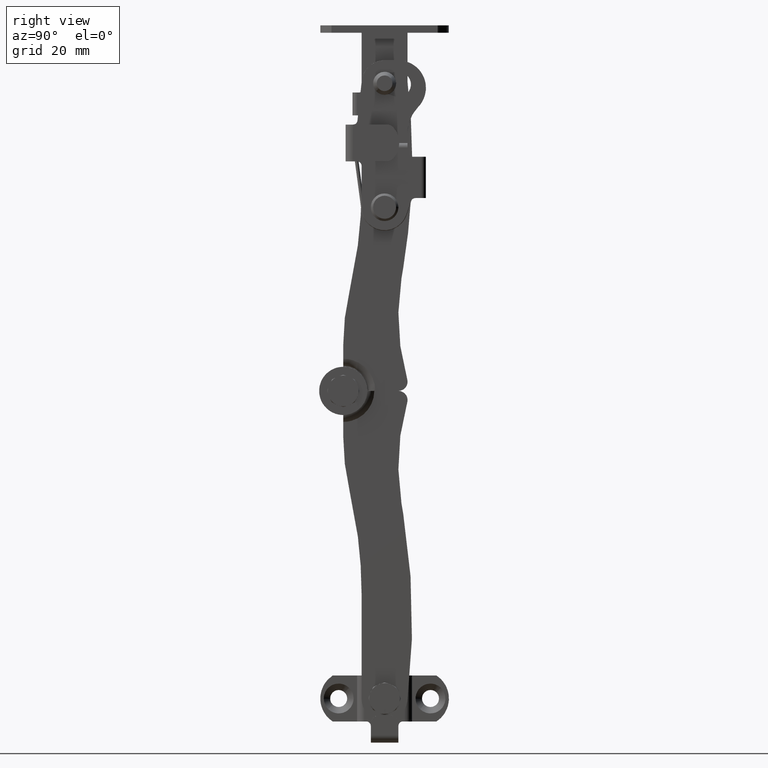
[diagram: clean part render]
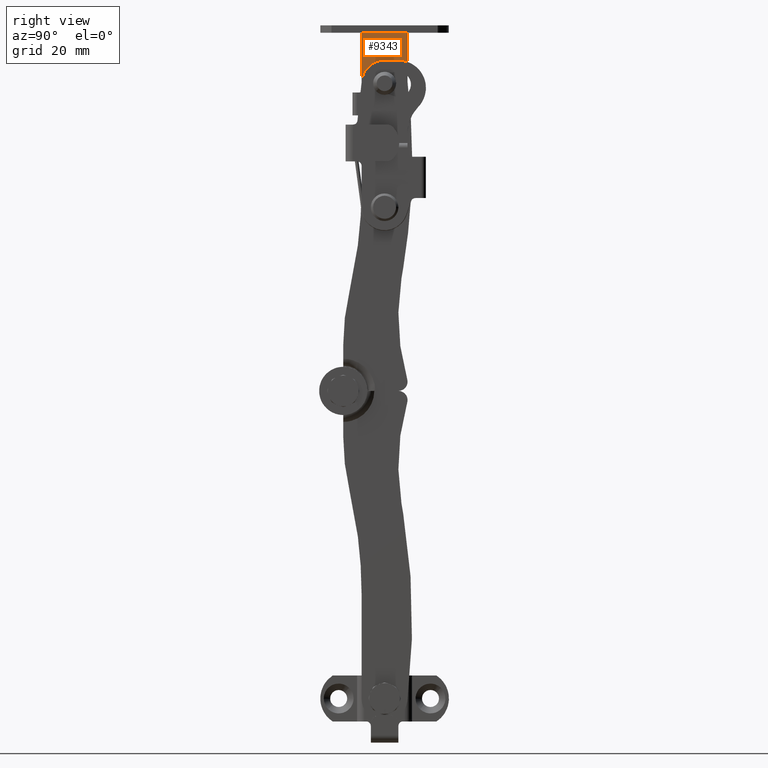
[diagram: same view with one face highlighted and labeled with its STEP entity id]
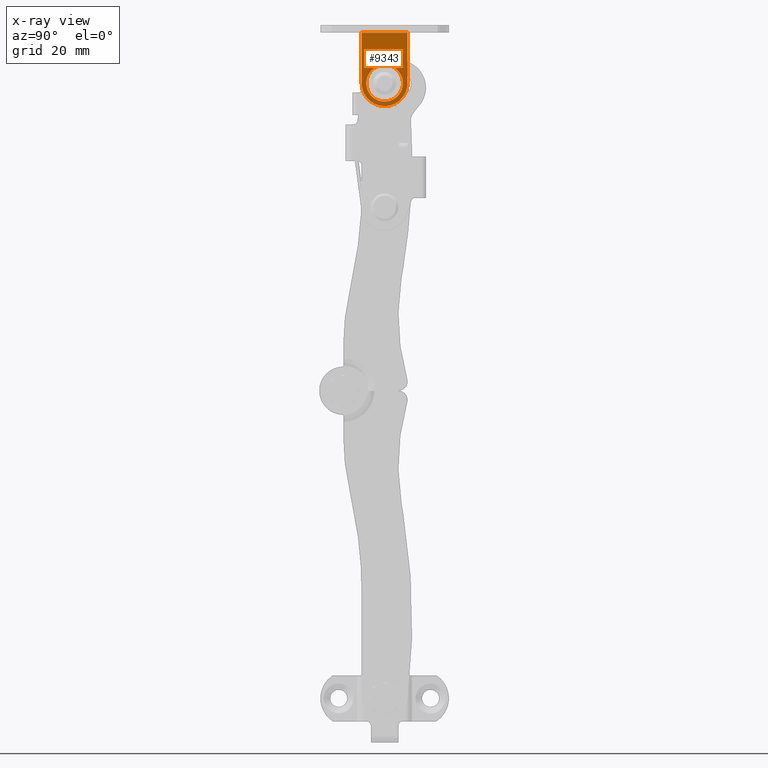
[diagram: x-ray of the same camera — body ghosted, the highlighted face saturated]
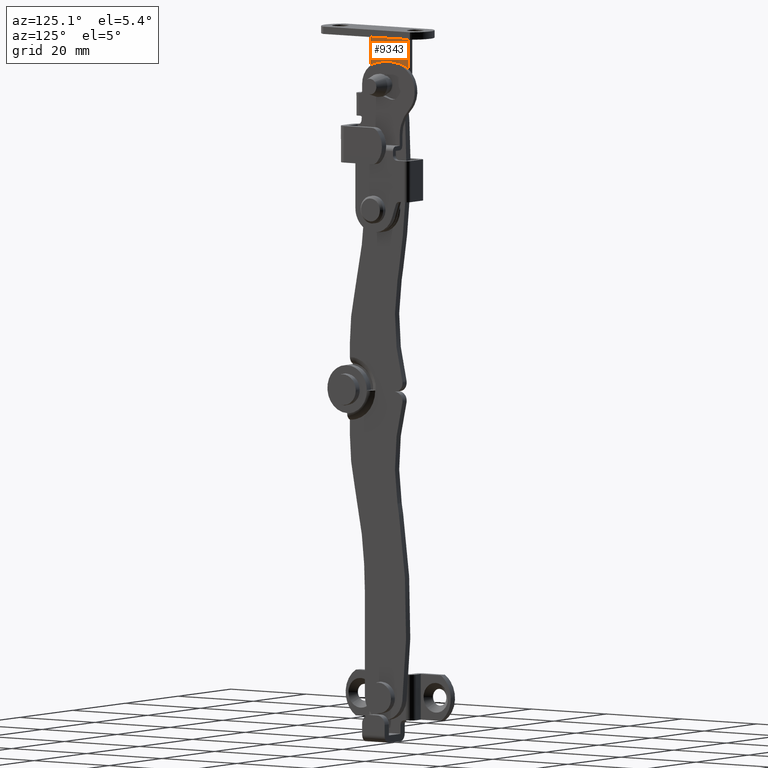
[diagram: same view with one face highlighted and labeled with its STEP entity id]
A machine part, right view. The second image highlights one B-rep face of the part: STEP entity #9343.
The next image is the same camera in x-ray: the body ghosted, the highlighted face saturated — about 0% of this face is hidden behind the body in this view.
A second angle (auxiliary view) of the same face is appended — the face is thin or edge-on in the first view.
In plain terms, the highlighted face is a freeform B-spline surface patch.
Its self-contained STEP definition (entity closure, byte-faithful):
#8885=CARTESIAN_POINT('',(-2.099998793945885,-3.999999999999295,78.000030000059695));
#8886=VERTEX_POINT('',#8885);
#8930=CARTESIAN_POINT('',(-2.099998768763915,-13.999999999999501,78.000030000059695));
#8931=VERTEX_POINT('',#8930);
#8937=CARTESIAN_POINT('',(-2.099998768763915,-13.999999999999501,78.000030000059695));
#8938=CARTESIAN_POINT('',(-2.099998793945885,-3.999999999999295,78.000030000059695));
#8939=QUASI_UNIFORM_CURVE('',1,(#8937,#8938),.UNSPECIFIED.,.F.,.U.);
#8940=EDGE_CURVE('',#8931,#8886,#8939,.T.);
#9171=CARTESIAN_POINT('',(-2.099998793938625,-3.999999999999365,67.000030000059709));
#9172=VERTEX_POINT('',#9171);
#9173=CARTESIAN_POINT('',(-2.099998793938625,-3.999999999999365,67.000030000059709));
#9174=CARTESIAN_POINT('',(-2.099998793945885,-3.999999999999295,78.000030000059695));
#9175=QUASI_UNIFORM_CURVE('',1,(#9173,#9174),.UNSPECIFIED.,.F.,.U.);
#9176=EDGE_CURVE('',#9172,#8886,#9175,.T.);
#9209=CARTESIAN_POINT('',(-2.099998793938625,-8.999994946853553,62.000030000062182));
#9210=VERTEX_POINT('',#9209);
#9211=CARTESIAN_POINT('',(-2.099998793938625,-8.999994946853553,62.000030000062182));
#9212=CARTESIAN_POINT('',(-2.099998793938622,-8.550008657822568,61.999859426116203));
#9213=CARTESIAN_POINT('',(-2.099998793938627,-7.772896093994976,62.105722609973853));
#9214=CARTESIAN_POINT('',(-2.099998793938625,-6.583924863831856,62.564149162837573));
#9215=CARTESIAN_POINT('',(-2.099998793938624,-5.603558000883981,63.254648450512967));
#9216=CARTESIAN_POINT('',(-2.099998793938626,-4.808715117068802,64.199505921250918));
#9217=CARTESIAN_POINT('',(-2.099998793938622,-4.183115243330177,65.405015081370792));
#9218=CARTESIAN_POINT('',(-2.099998793938624,-3.999442721658792,66.386345990852206));
#9219=CARTESIAN_POINT('',(-2.099998793938625,-3.999999999999365,67.000030000059709));
#9220=B_SPLINE_CURVE_WITH_KNOTS('',3,(#9211,#9212,#9213,#9214,#9215,#9216,#9217,#9218,#9219),.UNSPECIFIED.,.F.,.U.,(4,1,1,1,1,1,4),(0.000000434604402,1.349926794740237,2.331730172321430,3.804423735087328,4.908803362953162,6.013357037922528,7.854175873591083),.UNSPECIFIED.);
#9221=EDGE_CURVE('',#9210,#9172,#9220,.T.);
#9223=CARTESIAN_POINT('',(-2.099998793938625,-13.999999999999501,67.000030000059709));
#9224=VERTEX_POINT('',#9223);
#9225=CARTESIAN_POINT('',(-2.099998793938625,-13.999999999999501,67.000030000059709));
#9226=CARTESIAN_POINT('',(-2.099998793938624,-14.000140323807900,66.550052693353763));
#9227=CARTESIAN_POINT('',(-2.099998793938628,-13.866669137351030,65.568335710917381));
#9228=CARTESIAN_POINT('',(-2.099998793938620,-13.245860241141580,64.212249158223628));
#9229=CARTESIAN_POINT('',(-2.099998793938633,-12.356977554586640,63.231954693312183));
#9230=CARTESIAN_POINT('',(-2.099998793938610,-11.442786666607470,62.604936368917663));
#9231=CARTESIAN_POINT('',(-2.099998793938618,-10.390634255645640,62.138411247260272));
#9232=CARTESIAN_POINT('',(-2.099998793938651,-9.531809027196779,61.999741885548509));
#9233=CARTESIAN_POINT('',(-2.099998793938625,-8.999994946853553,62.000030000062182));
#9234=B_SPLINE_CURVE_WITH_KNOTS('',3,(#9225,#9226,#9227,#9228,#9229,#9230,#9231,#9232,#9233),.UNSPECIFIED.,.F.,.U.,(4,1,1,1,1,1,4),(0.000000427679399,1.349927766969277,2.945374329812727,4.417907094581658,5.277025527522868,6.258822664531270,7.854181569806390),.UNSPECIFIED.);
#9235=EDGE_CURVE('',#9224,#9210,#9234,.T.);
#9252=CARTESIAN_POINT('',(-2.099998768763915,-13.999999999999501,78.000030000059695));
#9253=CARTESIAN_POINT('',(-2.099998793938625,-13.999999999999501,67.000030000059709));
#9254=QUASI_UNIFORM_CURVE('',1,(#9252,#9253),.UNSPECIFIED.,.F.,.U.);
#9255=EDGE_CURVE('',#8931,#9224,#9254,.T.);
#9262=CARTESIAN_POINT('',(-2.099998793938665,-14.499499980617570,78.799229969048469));
#9263=CARTESIAN_POINT('',(-2.099998793938665,-3.500499751160324,78.799229969048469));
#9264=CARTESIAN_POINT('',(-2.099998793938665,-14.499499980617570,61.200829601919970));
#9265=CARTESIAN_POINT('',(-2.099998793938665,-3.500499751160324,61.200829601919970));
#9266=B_SPLINE_SURFACE_WITH_KNOTS('',1,1,((#9262,#9264),(#9263,#9265)),.UNSPECIFIED.,.F.,.F.,.U.,(2,2),(2,2),(0.0,10.999000229457250),(0.0,17.598400367128502),.UNSPECIFIED.);
#9267=ORIENTED_EDGE('',*,*,#9255,.T.);
#9268=ORIENTED_EDGE('',*,*,#9235,.T.);
#9269=ORIENTED_EDGE('',*,*,#9221,.T.);
#9270=ORIENTED_EDGE('',*,*,#9176,.T.);
#9271=ORIENTED_EDGE('',*,*,#8940,.F.);
#9272=EDGE_LOOP('',(#9267,#9268,#9269,#9270,#9271));
#9273=FACE_OUTER_BOUND('',#9272,.T.);
#9274=CARTESIAN_POINT('',(-2.099998793938625,-8.999999999999350,71.000030000059709));
#9275=VERTEX_POINT('',#9274);
#9276=CARTESIAN_POINT('',(-2.099998793938625,-12.999999999995129,67.000024192059541));
#9277=VERTEX_POINT('',#9276);
#9278=CARTESIAN_POINT('',(-2.099998793938625,-8.999999999999350,71.000030000059709));
#9279=CARTESIAN_POINT('',(-2.099998793938625,-9.523693725525540,71.000583422949106));
#9280=CARTESIAN_POINT('',(-2.099998793938619,-10.374101476986411,70.830470168115539));
#9281=CARTESIAN_POINT('',(-2.099998793938633,-11.378142513229459,70.261499348638282));
#9282=CARTESIAN_POINT('',(-2.099998793938616,-12.077670909381281,69.611651143421852));
#9283=CARTESIAN_POINT('',(-2.099998793938634,-12.774056695088751,68.569975223994589));
#9284=CARTESIAN_POINT('',(-2.099998793938616,-13.001177471944420,67.622059310379498));
#9285=CARTESIAN_POINT('',(-2.099998793938625,-12.999999999995129,67.000024192059541));
#9286=B_SPLINE_CURVE_WITH_KNOTS('',3,(#9278,#9279,#9280,#9281,#9282,#9283,#9284,#9285),.UNSPECIFIED.,.F.,.U.,(4,1,1,1,1,4),(0.000000570307678,1.570836989910032,2.552676394456181,3.436147932293575,4.417957976150129,6.283346250957878),.UNSPECIFIED.);
#9287=EDGE_CURVE('',#9275,#9277,#9286,.T.);
#9288=ORIENTED_EDGE('',*,*,#9287,.F.);
#9289=CARTESIAN_POINT('',(-2.099998793938624,-6.050889669833001,69.702391898899407));
#9290=VERTEX_POINT('',#9289);
#9291=CARTESIAN_POINT('',(-2.099998793938624,-6.050889669833001,69.702391898899407));
#9292=CARTESIAN_POINT('',(-2.099998793938628,-6.447033680416882,70.136058273286238));
#9293=CARTESIAN_POINT('',(-2.099998793938620,-7.376865512979558,70.782114200070055));
#9294=CARTESIAN_POINT('',(-2.099998793938626,-8.481769856703153,71.000512990409788));
#9295=CARTESIAN_POINT('',(-2.099998793938625,-8.999999999999350,71.000030000059709));
#9296=B_SPLINE_CURVE_WITH_KNOTS('',3,(#9291,#9292,#9293,#9294,#9295),.UNSPECIFIED.,.F.,.U.,(4,1,4),(0.000000176346620,1.761700144752356,3.316218769107768),.UNSPECIFIED.);
#9297=EDGE_CURVE('',#9290,#9275,#9296,.T.);
#9298=ORIENTED_EDGE('',*,*,#9297,.F.);
#9299=CARTESIAN_POINT('',(-2.099998793938625,-5.000000000003567,67.000035808059891));
#9300=VERTEX_POINT('',#9299);
#9301=CARTESIAN_POINT('',(-2.099998793938625,-5.000000000003567,67.000035808059891));
#9302=CARTESIAN_POINT('',(-2.099998793938626,-4.999410856937660,67.525538114024627));
#9303=CARTESIAN_POINT('',(-2.099998793938626,-5.197961208108032,68.514000243319671));
#9304=CARTESIAN_POINT('',(-2.099998793938624,-5.737380887971146,69.360787340402581));
#9305=CARTESIAN_POINT('',(-2.099998793938624,-6.050889669833001,69.702391898899407));
#9306=B_SPLINE_CURVE_WITH_KNOTS('',3,(#9301,#9302,#9303,#9304,#9305),.UNSPECIFIED.,.F.,.U.,(4,1,4),(0.000000132113492,1.576242827962612,2.967120993549930),.UNSPECIFIED.);
#9307=EDGE_CURVE('',#9300,#9290,#9306,.T.);
#9308=ORIENTED_EDGE('',*,*,#9307,.F.);
#9309=CARTESIAN_POINT('',(-2.099998793938625,-8.999999999999350,63.000030000059702));
#9310=VERTEX_POINT('',#9309);
#9311=CARTESIAN_POINT('',(-2.099998793938625,-8.999999999999350,63.000030000059702));
#9312=CARTESIAN_POINT('',(-2.099998793938625,-8.541828929786311,62.999735212566769));
#9313=CARTESIAN_POINT('',(-2.099998793938629,-7.592872881554166,63.164784234846763));
#9314=CARTESIAN_POINT('',(-2.099998793938621,-6.500336518480126,63.801423051946401));
#9315=CARTESIAN_POINT('',(-2.099998793938632,-5.626151800824276,64.742397279929094));
#9316=CARTESIAN_POINT('',(-2.099998793938614,-5.115359460977598,65.789100756783171));
#9317=CARTESIAN_POINT('',(-2.099998793938634,-4.999942565223439,66.640084510466409));
#9318=CARTESIAN_POINT('',(-2.099998793938625,-5.000000000003567,67.000035808059891));
#9319=B_SPLINE_CURVE_WITH_KNOTS('',3,(#9311,#9312,#9313,#9314,#9315,#9316,#9317,#9318),.UNSPECIFIED.,.F.,.U.,(4,1,1,1,1,4),(0.000000570302620,1.374478697827455,2.847198899391068,3.730670432206891,5.203404548591117,6.283346250957853),.UNSPECIFIED.);
#9320=EDGE_CURVE('',#9310,#9300,#9319,.T.);
#9321=ORIENTED_EDGE('',*,*,#9320,.F.);
#9322=CARTESIAN_POINT('',(-2.099998793938625,-11.949110330165690,64.297668101220012));
#9323=VERTEX_POINT('',#9322);
#9324=CARTESIAN_POINT('',(-2.099998793938625,-11.949110330165690,64.297668101220012));
#9325=CARTESIAN_POINT('',(-2.099998793938627,-11.715803216647600,64.042917324058209));
#9326=CARTESIAN_POINT('',(-2.099998793938623,-11.209297526246640,63.616934367420441));
#9327=CARTESIAN_POINT('',(-2.099998793938620,-10.208836127385659,63.129417216639702));
#9328=CARTESIAN_POINT('',(-2.099998793938638,-9.449115238643074,62.999717164068208));
#9329=CARTESIAN_POINT('',(-2.099998793938625,-8.999999999999350,63.000030000059702));
#9330=B_SPLINE_CURVE_WITH_KNOTS('',3,(#9324,#9325,#9326,#9327,#9328,#9329),.UNSPECIFIED.,.F.,.U.,(4,1,1,4),(0.000000176346152,1.036334137003304,1.968976519717990,3.316218769107800),.UNSPECIFIED.);
#9331=EDGE_CURVE('',#9323,#9310,#9330,.T.);
#9332=ORIENTED_EDGE('',*,*,#9331,.F.);
#9333=CARTESIAN_POINT('',(-2.099998793938625,-12.999999999995129,67.000024192059541));
#9334=CARTESIAN_POINT('',(-2.099998793938629,-13.000134249830991,66.598235360118721));
#9335=CARTESIAN_POINT('',(-2.099998793938616,-12.849828734568771,65.609237799284344));
#9336=CARTESIAN_POINT('',(-2.099998793938632,-12.346648404731461,64.730127367736586));
#9337=CARTESIAN_POINT('',(-2.099998793938625,-11.949110330165690,64.297668101220012));
#9338=B_SPLINE_CURVE_WITH_KNOTS('',3,(#9333,#9334,#9335,#9336,#9337),.UNSPECIFIED.,.F.,.U.,(4,1,4),(0.000000132111980,1.205400764314333,2.967120993549942),.UNSPECIFIED.);
#9339=EDGE_CURVE('',#9277,#9323,#9338,.T.);
#9340=ORIENTED_EDGE('',*,*,#9339,.F.);
#9341=EDGE_LOOP('',(#9288,#9298,#9308,#9321,#9332,#9340));
#9342=FACE_BOUND('',#9341,.T.);
#9343=ADVANCED_FACE('',(#9273,#9342),#9266,.F.);